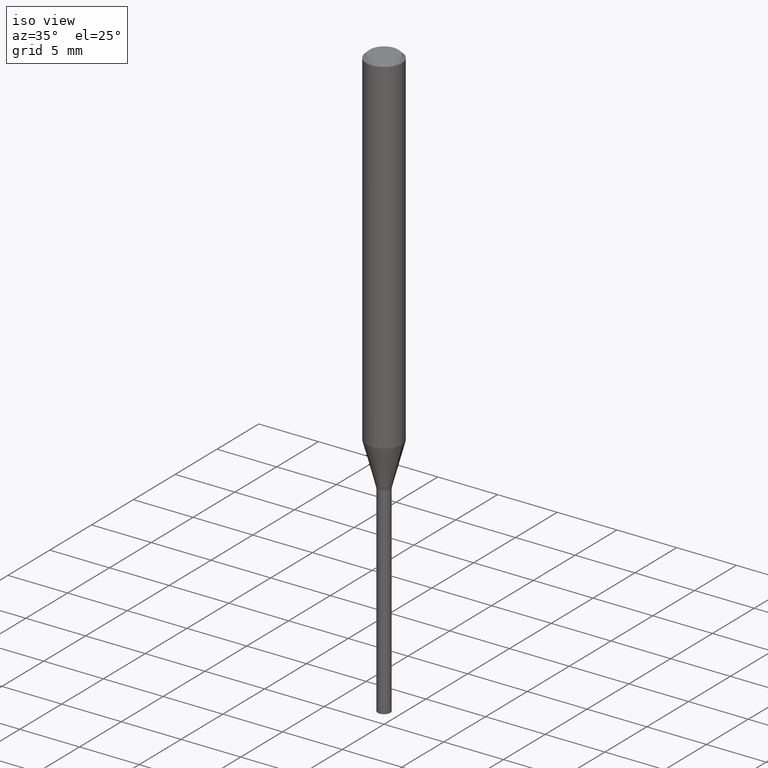
[diagram: clean part render]
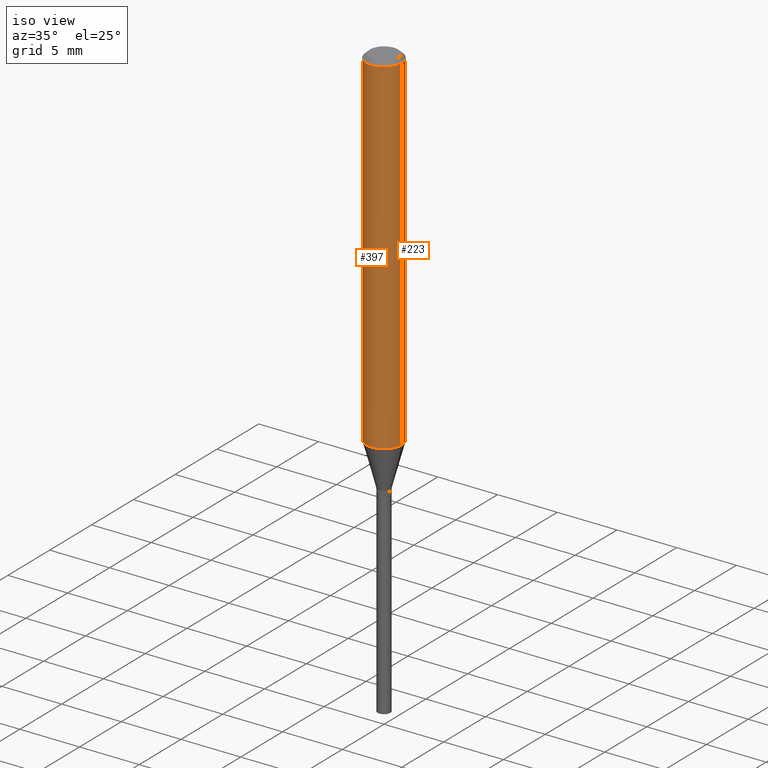
[diagram: same view with one multi-face feature highlighted, each face labeled with its STEP entity id]
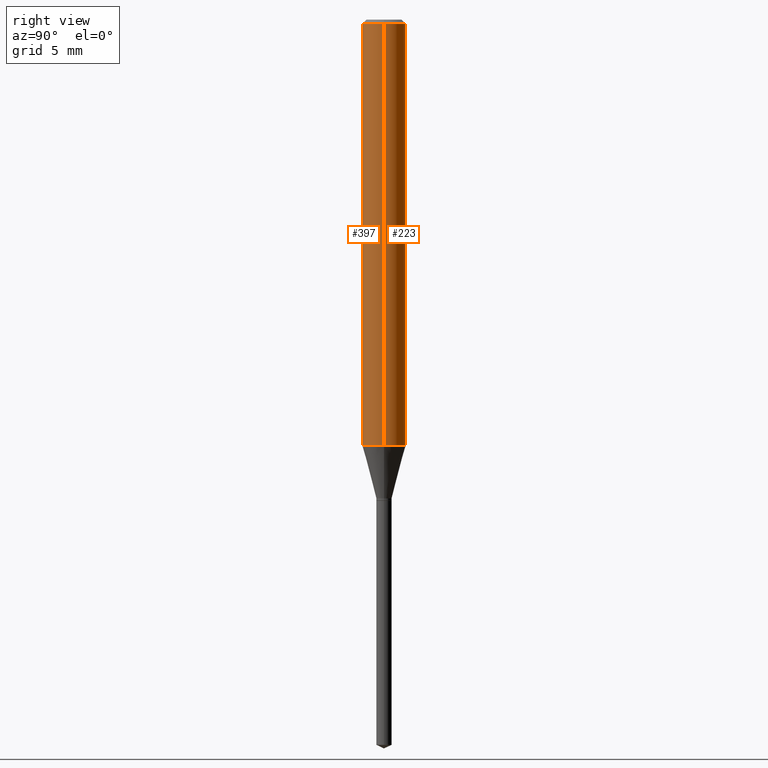
[diagram: same view with one multi-face feature highlighted, each face labeled with its STEP entity id]
A machine part, iso view. The highlighted faces form ONE feature: a constant-radius fillet chain: 2 tangent blend faces with common blend radius 1.4999 mm. The faces share edges in the B-rep.
A second angle (right view) of the same feature is appended — it is thin or edge-on in the first view.
Their STEP definitions:
[1] entity #223 (Cylinder):
#18 = CARTESIAN_POINT ( 'NONE',  ( -0.05905000000000006771, 4.195754854663396409E-16, -2.904631170795525045E-30 ) ) ;
#36 = DIRECTION ( 'NONE',  ( -2.445468806185136877E-29, 3.491481338843145188E-15, 1.000000000000000000 ) ) ;
#46 = ORIENTED_EDGE ( 'NONE', *, *, #174, .F. ) ;
#49 = CARTESIAN_POINT ( 'NONE',  ( 0.05905000000000015098, -4.426462504432298704E-15, -1.149689248989355095 ) ) ;
#51 = CARTESIAN_POINT ( 'NONE',  ( 2.888098660104663328E-31, -4.123439461173779030E-17, -0.01181000000000006871 ) ) ;
#52 = CARTESIAN_POINT ( 'NONE',  ( 0.000000000000000000, 0.000000000000000000, 0.000000000000000000 ) ) ;
#53 = ORIENTED_EDGE ( 'NONE', *, *, #214, .T. ) ;
#63 = CARTESIAN_POINT ( 'NONE',  ( 0.05905000000000006771, -4.123439461173745257E-16, 2.879382386107503723E-30 ) ) ;
#64 = DIRECTION ( 'NONE',  ( 1.000000000000000000, -6.982962677686272233E-15, 0.000000000000000000 ) ) ;
#76 = CARTESIAN_POINT ( 'NONE',  ( -0.05905000000000015098, -3.594543072848583502E-15, -1.149689248989355095 ) ) ;
#82 = AXIS2_PLACEMENT_3D ( 'NONE', #52, #144, #219 ) ;
#89 = VERTEX_POINT ( 'NONE', #300 ) ;
#92 = CIRCLE ( 'NONE', #221, 0.05905000000000014404 ) ;
#98 = VERTEX_POINT ( 'NONE', #49 ) ;
#134 = VECTOR ( 'NONE', #173, 39.37007874015748143 ) ;
#139 = DIRECTION ( 'NONE',  ( 1.000000000000000000, -6.982962677686266711E-15, 0.000000000000000000 ) ) ;
#144 = DIRECTION ( 'NONE',  ( -2.445468806185136597E-29, 3.491481338843145583E-15, 1.000000000000000000 ) ) ;
#151 = EDGE_CURVE ( 'NONE', #98, #461, #444, .T. ) ;
#173 = DIRECTION ( 'NONE',  ( -2.445468806185136877E-29, 3.491481338843145188E-15, 1.000000000000000000 ) ) ;
#174 = EDGE_CURVE ( 'NONE', #461, #89, #379, .T. ) ;
#198 = CARTESIAN_POINT ( 'NONE',  ( 2.811529195209884553E-29, -4.014118558314923784E-15, -1.149689248989355095 ) ) ;
#214 = EDGE_CURVE ( 'NONE', #402, #89, #347, .T. ) ;
#219 = DIRECTION ( 'NONE',  ( 1.000000000000000000, -6.982962677686266711E-15, 4.876176775795936353E-29 ) ) ;
#221 = AXIS2_PLACEMENT_3D ( 'NONE', #198, #229, #64 ) ;
#223 = ADVANCED_FACE ( 'NONE', ( #258 ), #400, .T. ) ;
#229 = DIRECTION ( 'NONE',  ( -2.445468806185136597E-29, 3.491481338843145583E-15, 1.000000000000000000 ) ) ;
#235 = CARTESIAN_POINT ( 'NONE',  ( 0.05904999999999999832, -4.535783407291118600E-16, -0.01181000000000006871 ) ) ;
#258 = FACE_OUTER_BOUND ( 'NONE', #263, .T. ) ;
#263 = EDGE_LOOP ( 'NONE', ( #472, #53, #46, #281 ) ) ;
#267 = AXIS2_PLACEMENT_3D ( 'NONE', #51, #334, #139 ) ;
#281 = ORIENTED_EDGE ( 'NONE', *, *, #151, .F. ) ;
#300 = CARTESIAN_POINT ( 'NONE',  ( -0.05904999999999999832, -1.608100990996990277E-15, -0.01181000000000006871 ) ) ;
#334 = DIRECTION ( 'NONE',  ( -2.445468806185136597E-29, 3.491481338843145583E-15, 1.000000000000000000 ) ) ;
#347 = LINE ( 'NONE', #18, #384 ) ;
#349 = EDGE_CURVE ( 'NONE', #98, #402, #92, .T. ) ;
#379 = CIRCLE ( 'NONE', #267, 0.05904999999999999832 ) ;
#384 = VECTOR ( 'NONE', #36, 39.37007874015748143 ) ;
#400 = CYLINDRICAL_SURFACE ( 'NONE', #82, 0.05905000000000006771 ) ;
#402 = VERTEX_POINT ( 'NONE', #76 ) ;
#444 = LINE ( 'NONE', #63, #134 ) ;
#461 = VERTEX_POINT ( 'NONE', #235 ) ;
#472 = ORIENTED_EDGE ( 'NONE', *, *, #349, .T. ) ;
[2] entity #397 (Cylinder):
#16 = AXIS2_PLACEMENT_3D ( 'NONE', #483, #109, #205 ) ;
#18 = CARTESIAN_POINT ( 'NONE',  ( -0.05905000000000006771, 4.195754854663396409E-16, -2.904631170795525045E-30 ) ) ;
#36 = DIRECTION ( 'NONE',  ( -2.445468806185136877E-29, 3.491481338843145188E-15, 1.000000000000000000 ) ) ;
#49 = CARTESIAN_POINT ( 'NONE',  ( 0.05905000000000015098, -4.426462504432298704E-15, -1.149689248989355095 ) ) ;
#55 = CIRCLE ( 'NONE', #83, 0.05905000000000014404 ) ;
#57 = ORIENTED_EDGE ( 'NONE', *, *, #214, .F. ) ;
#63 = CARTESIAN_POINT ( 'NONE',  ( 0.05905000000000006771, -4.123439461173745257E-16, 2.879382386107503723E-30 ) ) ;
#72 = EDGE_CURVE ( 'NONE', #89, #461, #74, .T. ) ;
#74 = CIRCLE ( 'NONE', #16, 0.05904999999999999832 ) ;
#76 = CARTESIAN_POINT ( 'NONE',  ( -0.05905000000000015098, -3.594543072848583502E-15, -1.149689248989355095 ) ) ;
#83 = AXIS2_PLACEMENT_3D ( 'NONE', #176, #434, #301 ) ;
#89 = VERTEX_POINT ( 'NONE', #300 ) ;
#98 = VERTEX_POINT ( 'NONE', #49 ) ;
#109 = DIRECTION ( 'NONE',  ( -2.445468806185136597E-29, 3.491481338843145583E-15, 1.000000000000000000 ) ) ;
#117 = DIRECTION ( 'NONE',  ( -2.445468806185136597E-29, 3.491481338843145583E-15, 1.000000000000000000 ) ) ;
#126 = ORIENTED_EDGE ( 'NONE', *, *, #344, .T. ) ;
#132 = ORIENTED_EDGE ( 'NONE', *, *, #72, .F. ) ;
#134 = VECTOR ( 'NONE', #173, 39.37007874015748143 ) ;
#151 = EDGE_CURVE ( 'NONE', #98, #461, #444, .T. ) ;
#164 = CYLINDRICAL_SURFACE ( 'NONE', #313, 0.05905000000000006771 ) ;
#173 = DIRECTION ( 'NONE',  ( -2.445468806185136877E-29, 3.491481338843145188E-15, 1.000000000000000000 ) ) ;
#176 = CARTESIAN_POINT ( 'NONE',  ( 2.811529195209884553E-29, -4.014118558314923784E-15, -1.149689248989355095 ) ) ;
#185 = EDGE_LOOP ( 'NONE', ( #57, #126, #338, #132 ) ) ;
#205 = DIRECTION ( 'NONE',  ( 1.000000000000000000, -6.982962677686266711E-15, 0.000000000000000000 ) ) ;
#214 = EDGE_CURVE ( 'NONE', #402, #89, #347, .T. ) ;
#235 = CARTESIAN_POINT ( 'NONE',  ( 0.05904999999999999832, -4.535783407291118600E-16, -0.01181000000000006871 ) ) ;
#248 = CARTESIAN_POINT ( 'NONE',  ( 0.000000000000000000, 0.000000000000000000, 0.000000000000000000 ) ) ;
#300 = CARTESIAN_POINT ( 'NONE',  ( -0.05904999999999999832, -1.608100990996990277E-15, -0.01181000000000006871 ) ) ;
#301 = DIRECTION ( 'NONE',  ( 1.000000000000000000, -6.982962677686272233E-15, 0.000000000000000000 ) ) ;
#313 = AXIS2_PLACEMENT_3D ( 'NONE', #248, #117, #421 ) ;
#338 = ORIENTED_EDGE ( 'NONE', *, *, #151, .T. ) ;
#344 = EDGE_CURVE ( 'NONE', #402, #98, #55, .T. ) ;
#347 = LINE ( 'NONE', #18, #384 ) ;
#384 = VECTOR ( 'NONE', #36, 39.37007874015748143 ) ;
#397 = ADVANCED_FACE ( 'NONE', ( #427 ), #164, .T. ) ;
#402 = VERTEX_POINT ( 'NONE', #76 ) ;
#421 = DIRECTION ( 'NONE',  ( 1.000000000000000000, -6.982962677686266711E-15, 4.876176775795936353E-29 ) ) ;
#427 = FACE_OUTER_BOUND ( 'NONE', #185, .T. ) ;
#434 = DIRECTION ( 'NONE',  ( -2.445468806185136597E-29, 3.491481338843145583E-15, 1.000000000000000000 ) ) ;
#444 = LINE ( 'NONE', #63, #134 ) ;
#461 = VERTEX_POINT ( 'NONE', #235 ) ;
#483 = CARTESIAN_POINT ( 'NONE',  ( 2.888098660104663328E-31, -4.123439461173779030E-17, -0.01181000000000006871 ) ) ;